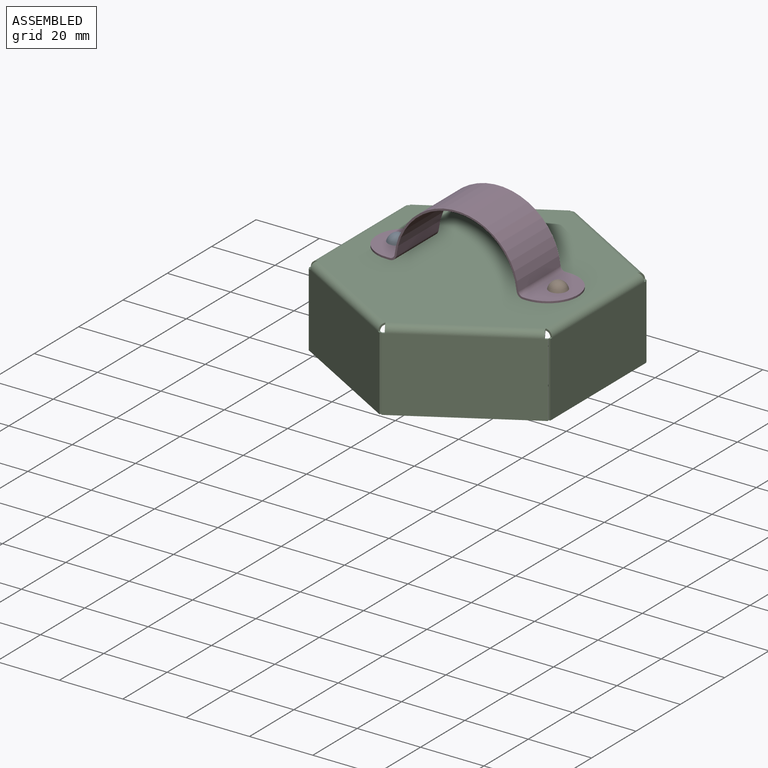
[diagram: assembled view]
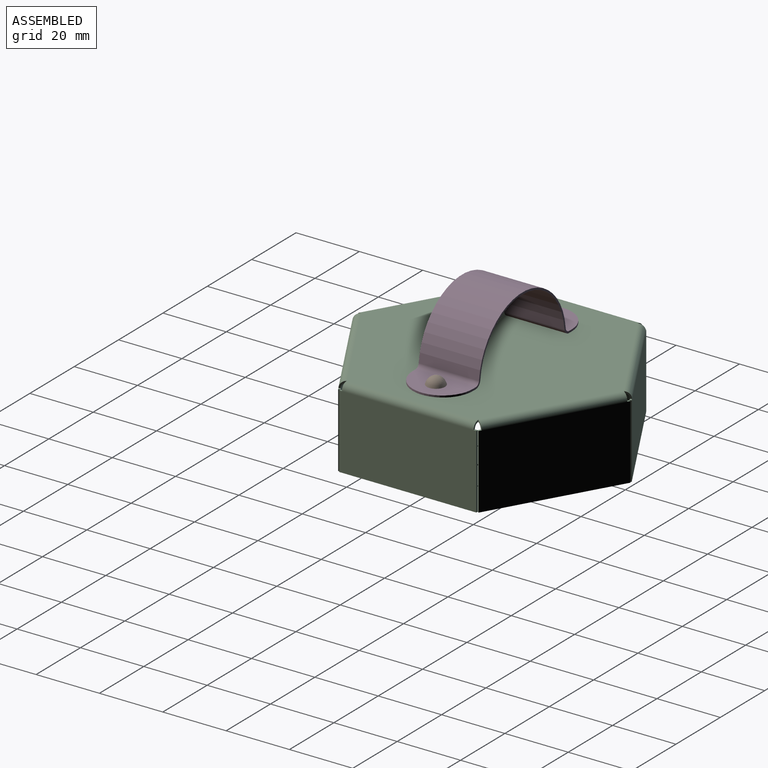
[diagram: assembled view, second angle]
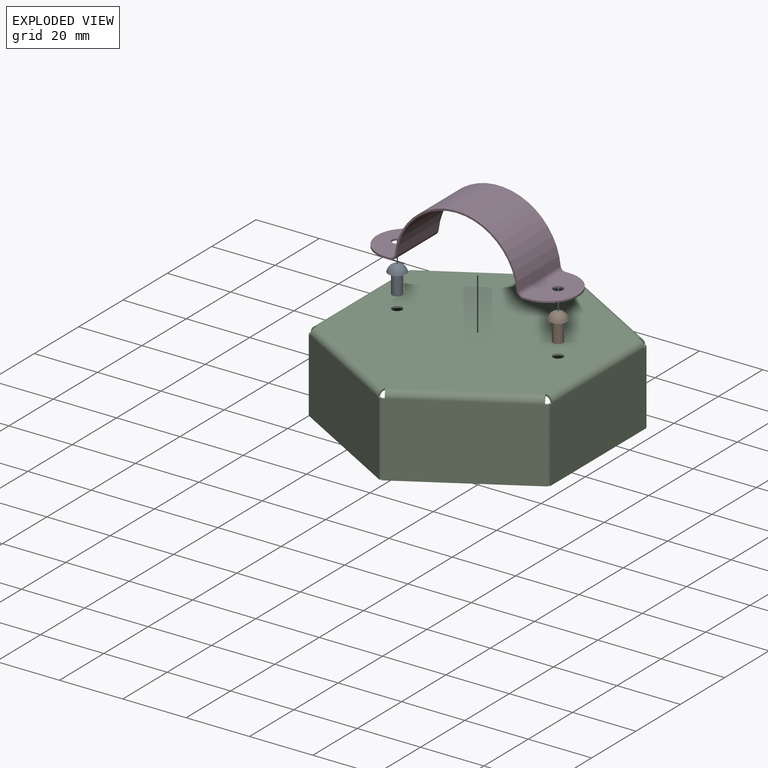
[diagram: exploded view]
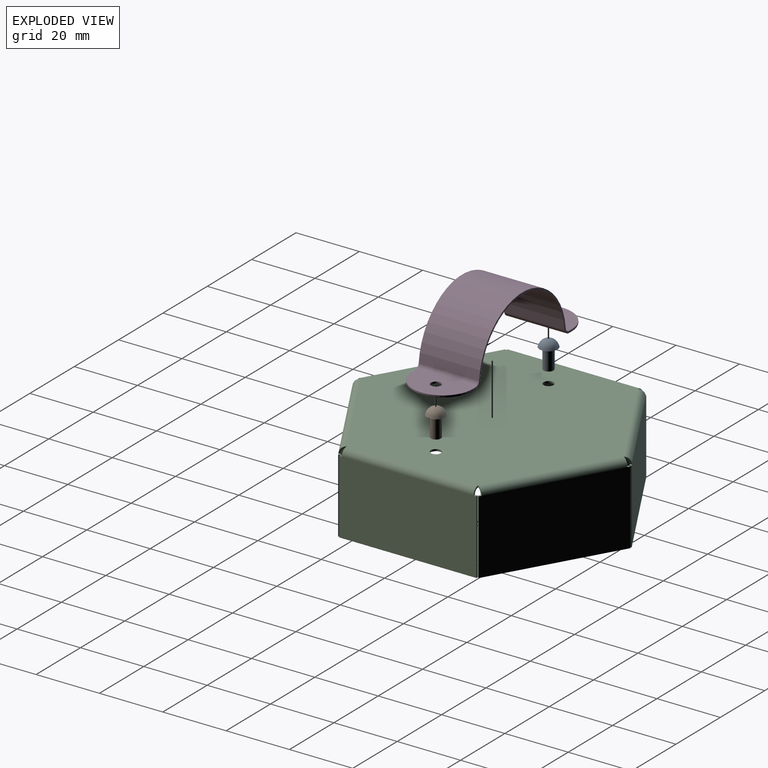
[diagram: exploded view, second angle]
ASSEMBLY  parts=4 mates=3
PART A: 5 faces, bbox 8.7x5.7x5.7 mm
  f0: plane 3.18x3.18mm, normal (1,0,0), area 7.9mm2, adj f1
  f1: cylinder r=1.59mm len=6.35mm, axis (-1,0,0), area 63.3mm2, adj f0,f2
  f2: plane 5.72x5.72mm, normal (1,0,0), area 17.7mm2, adj f1,f3
  f3: cone r=2.63mm half-angle=21.3deg, axis (1,0,0), area 10.9mm2, adj f2,f4
  f4: sphere r=2.82mm, area 31.8mm2, adj f3
PART B: same geometry as A
PART C: 70 faces, bbox 76.2x87.6x25.4 mm
  f0: plane 0.86x0.58mm, normal (0,0,1), area 0.5mm2, adj f2,f5,f6,f66
  f1: plane 43.29x0.58mm, normal (0,0,-1), area 25.2mm2, adj f2,f4,f5,f6
  f2: plane 23.29x0.58mm, normal (0,-1,0), area 13.5mm2, adj f0,f1,f5,f6
  f3: plane 0.86x0.58mm, normal (0,0,1), area 0.5mm2, adj f4,f5,f6,f67
  f4: plane 23.29x0.58mm, normal (0,1,0), area 13.5mm2, adj f1,f3,f5,f6
  f5: plane 43.29x23.29mm, normal (-1,0,0), area 1008.4mm2, adj f0,f1,f2,f3,f4,f68
  f6: plane 43.29x23.29mm, normal (1,0,0), area 1008.4mm2, adj f0,f1,f2,f3,f4,f69
  f7: cylinder r=1.59mm len=3.18mm, axis (0,0,1), area 5.8mm2, adj f9,f10
  f8: cylinder r=1.59mm len=3.18mm, axis (0,0,1), area 5.8mm2, adj f9,f10
  f9: plane 83.13x71.99mm, normal (0,0,1), area 4472.2mm2, adj f7,f8,f20,f31,f42,f53,f64,f68
  f10: plane 83.13x71.99mm, normal (0,0,-1), area 4472.2mm2, adj f7,f8,f21,f32,f43,f54,f65,f69
  f11: plane 1.04x0.94mm, normal (0,0,1), area 0.5mm2, adj f13,f16,f17,f18
  f12: plane 37.78x22.15mm, normal (0,0,-1), area 25.2mm2, adj f13,f15,f16,f17
  f13: plane 23.29x0.5mm, normal (0.87,-0.5,0), area 13.5mm2, adj f11,f12,f16,f17
  f14: plane 1.04x0.94mm, normal (0,0,1), area 0.5mm2, adj f15,f16,f17,f19
  f15: plane 23.29x0.5mm, normal (-0.87,0.5,0), area 13.5mm2, adj f12,f14,f16,f17
  f16: plane 37.49x23.29mm, normal (-0.5,-0.87,0), area 1008.4mm2, adj f11,f12,f13,f14,f15,f20
  f17: plane 37.49x23.29mm, normal (0.5,0.87,0), area 1008.4mm2, adj f11,f12,f13,f14,f15,f21
  f18: plane 2.11x1.82mm, normal (0.87,-0.5,0), area 1.7mm2, adj f11,f20,f21,f30
  f19: plane 2.11x1.82mm, normal (-0.87,0.5,0), area 1.7mm2, adj f14,f20,f21,f66
  f20: cylinder r=2.11mm len=37.05mm, axis (0.87,-0.5,0), area 137.5mm2, adj f9,f16,f18,f19
  f21: cylinder r=1.52mm len=36.76mm, axis (0.87,-0.5,0), area 99.5mm2, adj f10,f17,f18,f19
  f22: plane 1.04x0.94mm, normal (0,0,1), area 0.5mm2, adj f24,f27,f28,f29
  f23: plane 37.78x22.15mm, normal (0,0,-1), area 25.2mm2, adj f24,f26,f27,f28
  f24: plane 23.29x0.5mm, normal (0.87,0.5,0), area 13.5mm2, adj f22,f23,f27,f28
  f25: plane 1.04x0.94mm, normal (0,0,1), area 0.5mm2, adj f26,f27,f28,f30
  f26: plane 23.29x0.5mm, normal (-0.87,-0.5,0), area 13.5mm2, adj f23,f25,f27,f28
  f27: plane 37.49x23.29mm, normal (0.5,-0.87,0), area 1008.4mm2, adj f22,f23,f24,f25,f26,f31
  f28: plane 37.49x23.29mm, normal (-0.5,0.87,0), area 1008.4mm2, adj f22,f23,f24,f25,f26,f32
  f29: plane 2.11x1.82mm, normal (0.87,0.5,0), area 1.7mm2, adj f22,f31,f32,f41
  f30: plane 2.11x1.82mm, normal (-0.87,-0.5,0), area 1.7mm2, adj f18,f25,f31,f32
  f31: cylinder r=2.11mm len=37.05mm, axis (0.87,0.5,0), area 137.5mm2, adj f9,f27,f29,f30
  f32: cylinder r=1.52mm len=36.76mm, axis (0.87,0.5,0), area 99.5mm2, adj f10,f28,f29,f30
  f33: plane 0.86x0.58mm, normal (0,0,1), area 0.5mm2, adj f35,f38,f39,f40
  f34: plane 43.29x0.58mm, normal (0,0,-1), area 25.2mm2, adj f35,f37,f38,f39
  f35: plane 23.29x0.58mm, normal (0,1,0), area 13.5mm2, adj f33,f34,f38,f39
  f36: plane 0.86x0.58mm, normal (0,0,1), area 0.5mm2, adj f37,f38,f39,f41
  f37: plane 23.29x0.58mm, normal (0,-1,0), area 13.5mm2, adj f34,f36,f38,f39
  f38: plane 43.29x23.29mm, normal (1,0,0), area 1008.4mm2, adj f33,f34,f35,f36,f37,f42
  f39: plane 43.29x23.29mm, normal (-1,0,0), area 1008.4mm2, adj f33,f34,f35,f36,f37,f43
  f40: plane 2.11x2.11mm, normal (0,1,0), area 1.7mm2, adj f33,f42,f43,f52
  f41: plane 2.11x2.11mm, normal (0,-1,0), area 1.7mm2, adj f29,f36,f42,f43
  f42: cylinder r=2.11mm len=41.56mm, axis (0,1,0), area 137.5mm2, adj f9,f38,f40,f41
  f43: cylinder r=1.52mm len=41.56mm, axis (0,1,0), area 99.5mm2, adj f10,f39,f40,f41
  f44: plane 1.04x0.94mm, normal (0,0,1), area 0.5mm2, adj f46,f49,f50,f51
  f45: plane 37.78x22.15mm, normal (0,0,-1), area 25.2mm2, adj f46,f48,f49,f50
  f46: plane 23.29x0.5mm, normal (-0.87,0.5,0), area 13.5mm2, adj f44,f45,f49,f50
  f47: plane 1.04x0.94mm, normal (0,0,1), area 0.5mm2, adj f48,f49,f50,f52
  f48: plane 23.29x0.5mm, normal (0.87,-0.5,0), area 13.5mm2, adj f45,f47,f49,f50
  f49: plane 37.49x23.29mm, normal (0.5,0.87,0), area 1008.4mm2, adj f44,f45,f46,f47,f48,f53
  f50: plane 37.49x23.29mm, normal (-0.5,-0.87,0), area 1008.4mm2, adj f44,f45,f46,f47,f48,f54
  f51: plane 2.11x1.82mm, normal (-0.87,0.5,0), area 1.7mm2, adj f44,f53,f54,f63
  f52: plane 2.11x1.82mm, normal (0.87,-0.5,0), area 1.7mm2, adj f40,f47,f53,f54
  f53: cylinder r=2.11mm len=37.05mm, axis (-0.87,0.5,0), area 137.5mm2, adj f9,f49,f51,f52
  f54: cylinder r=1.52mm len=36.76mm, axis (-0.87,0.5,0), area 99.5mm2, adj f10,f50,f51,f52
  f55: plane 1.04x0.94mm, normal (0,0,1), area 0.5mm2, adj f57,f60,f61,f62
  f56: plane 37.78x22.15mm, normal (0,0,-1), area 25.2mm2, adj f57,f59,f60,f61
  f57: plane 23.29x0.5mm, normal (-0.87,-0.5,0), area 13.5mm2, adj f55,f56,f60,f61
  f58: plane 1.04x0.94mm, normal (0,0,1), area 0.5mm2, adj f59,f60,f61,f63
  f59: plane 23.29x0.5mm, normal (0.87,0.5,0), area 13.5mm2, adj f56,f58,f60,f61
  f60: plane 37.49x23.29mm, normal (-0.5,0.87,0), area 1008.4mm2, adj f55,f56,f57,f58,f59,f64
  f61: plane 37.49x23.29mm, normal (0.5,-0.87,0), area 1008.4mm2, adj f55,f56,f57,f58,f59,f65
  f62: plane 2.11x1.82mm, normal (-0.87,-0.5,0), area 1.7mm2, adj f55,f64,f65,f67
  f63: plane 2.11x1.82mm, normal (0.87,0.5,0), area 1.7mm2, adj f51,f58,f64,f65
  f64: cylinder r=2.11mm len=37.05mm, axis (-0.87,-0.5,0), area 137.5mm2, adj f9,f60,f62,f63
  f65: cylinder r=1.52mm len=36.76mm, axis (-0.87,-0.5,0), area 99.5mm2, adj f10,f61,f62,f63
  f66: plane 2.11x2.11mm, normal (0,-1,0), area 1.7mm2, adj f0,f19,f68,f69
  f67: plane 2.11x2.11mm, normal (0,1,0), area 1.7mm2, adj f3,f62,f68,f69
  f68: cylinder r=2.11mm len=41.56mm, axis (0,-1,0), area 137.5mm2, adj f5,f9,f66,f67
  f69: cylinder r=1.52mm len=41.56mm, axis (0,-1,0), area 99.5mm2, adj f6,f10,f66,f67
PART D: 24 faces, bbox 63.5x19.1x19.6 mm
  f0: plane 39.07x17.74mm, normal (0,1,0), area 33.1mm2, adj f2,f3,f10,f20
  f1: plane 39.07x17.74mm, normal (0,-1,0), area 33.1mm2, adj f2,f3,f11,f21
  f2: cylinder r=19.63mm len=39.07mm, axis (0,-1,0), area 1100.3mm2, adj f0,f1,f13,f23
  f3: cylinder r=19.05mm len=37.91mm, axis (0,-1,0), area 1067.7mm2, adj f0,f1,f12,f22
  f4: plane 1.17x0.58mm, normal (0,1,0), area 0.7mm2, adj f7,f8,f9,f10
  f5: plane 1.17x0.58mm, normal (0,-1,0), area 0.7mm2, adj f7,f8,f9,f11
  f6: cylinder r=1.59mm len=3.18mm, axis (0,0,1), area 5.8mm2, adj f8,f9
  f7: cylinder r=9.53mm len=19.05mm, axis (0,0,1), area 17.4mm2, adj f4,f5,f8,f9
  f8: plane 19.05x10.7mm, normal (0,0,1), area 157mm2, adj f4,f5,f6,f7,f13
  f9: plane 19.05x10.7mm, normal (0,0,-1), area 157mm2, adj f4,f5,f6,f7,f12
  f10: plane 2.1x1.95mm, normal (0,1,0), area 1.6mm2, adj f0,f4,f12,f13
  f11: plane 2.1x1.95mm, normal (0,-1,0), area 1.6mm2, adj f1,f5,f12,f13
  f12: cylinder r=2.11mm len=19.05mm, axis (0,1,0), area 59mm2, adj f3,f9,f10,f11
  f13: cylinder r=1.52mm len=19.05mm, axis (0,1,0), area 42.7mm2, adj f2,f8,f10,f11
  f14: plane 1.17x0.58mm, normal (0,1,0), area 0.7mm2, adj f15,f18,f19,f20
  f15: cylinder r=9.53mm len=19.05mm, axis (0,0,1), area 17.4mm2, adj f14,f17,f18,f19
  f16: cylinder r=1.59mm len=3.18mm, axis (0,0,1), area 5.8mm2, adj f18,f19
  f17: plane 1.17x0.58mm, normal (0,-1,0), area 0.7mm2, adj f15,f18,f19,f21
  f18: plane 19.05x10.7mm, normal (0,0,1), area 157mm2, adj f14,f15,f16,f17,f23
  f19: plane 19.05x10.7mm, normal (0,0,-1), area 157mm2, adj f14,f15,f16,f17,f22
  f20: plane 2.1x1.95mm, normal (0,1,0), area 1.6mm2, adj f0,f14,f22,f23
  f21: plane 2.1x1.95mm, normal (0,-1,0), area 1.6mm2, adj f1,f17,f22,f23
  f22: cylinder r=2.11mm len=19.05mm, axis (0,1,0), area 59mm2, adj f3,f19,f20,f21
  f23: cylinder r=1.52mm len=19.05mm, axis (0,1,0), area 42.7mm2, adj f2,f18,f20,f21
PLACE A rot(axis=(0,1,0),90deg) t=(-25.4,0,0.58)mm
PLACE B rot(axis=(0,1,0),90deg) t=(25.4,0,0.58)mm
PLACE C at identity
PLACE D at identity
MATE fastened A.f3 <-> D.f16  axis (0,0,-1) through (-25.4,0,0.58)mm
MATE fastened B.f3 <-> D.f6  axis (0,0,-1) through (25.4,0,0.58)mm
MATE fastened D.f16 <-> C.f8  axis (0,0,-1) through (-25.4,0,0)mm
